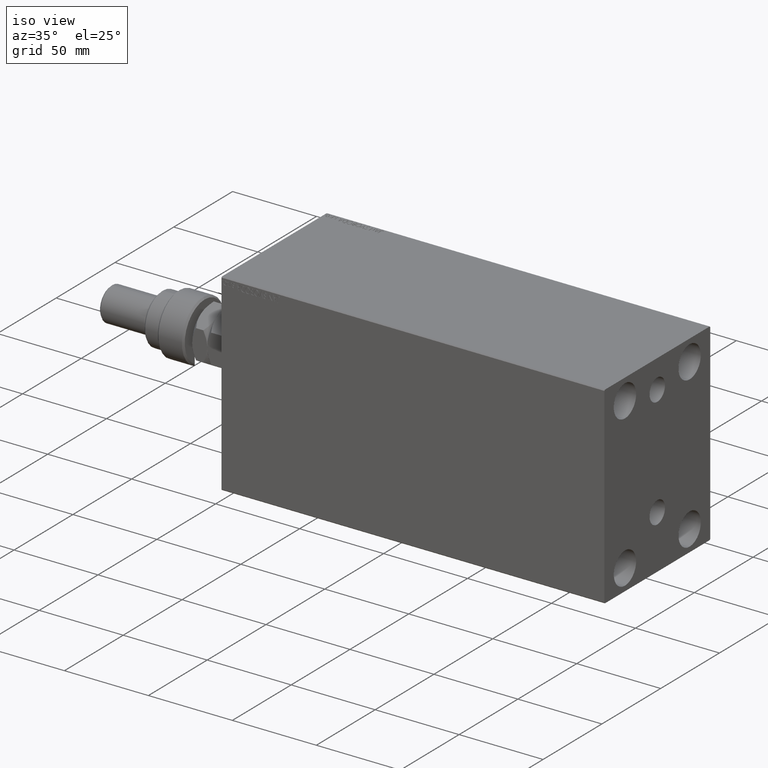
[diagram: clean part render]
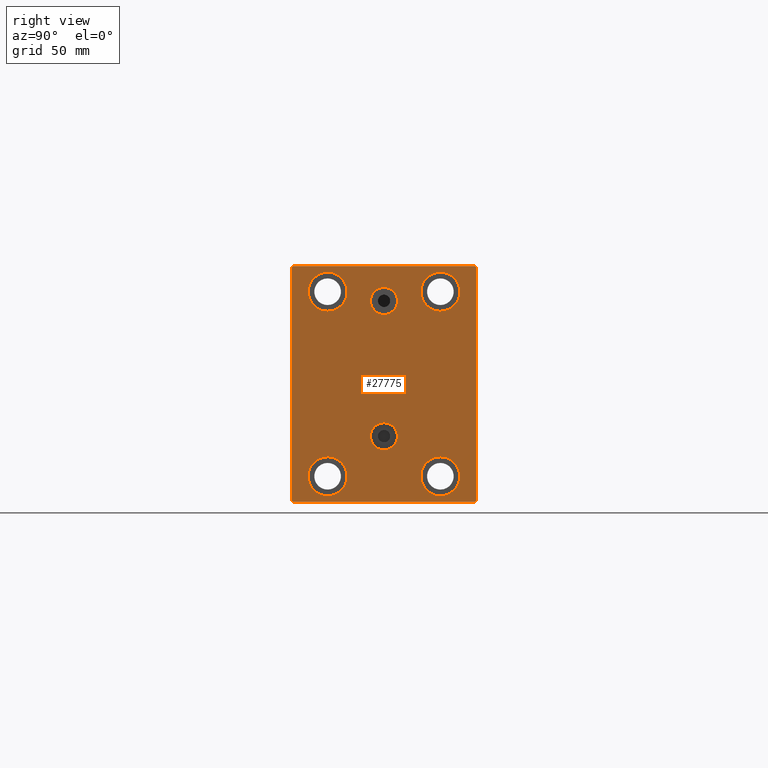
[diagram: tour spotlight — one face highlighted and labeled with its STEP entity id]
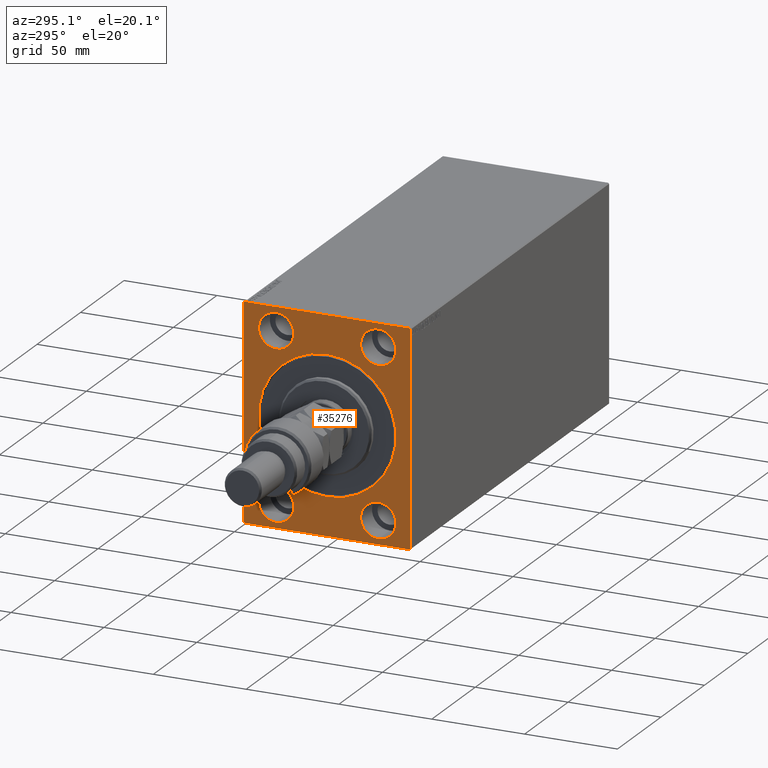
[diagram: tour spotlight — one face highlighted and labeled with its STEP entity id]
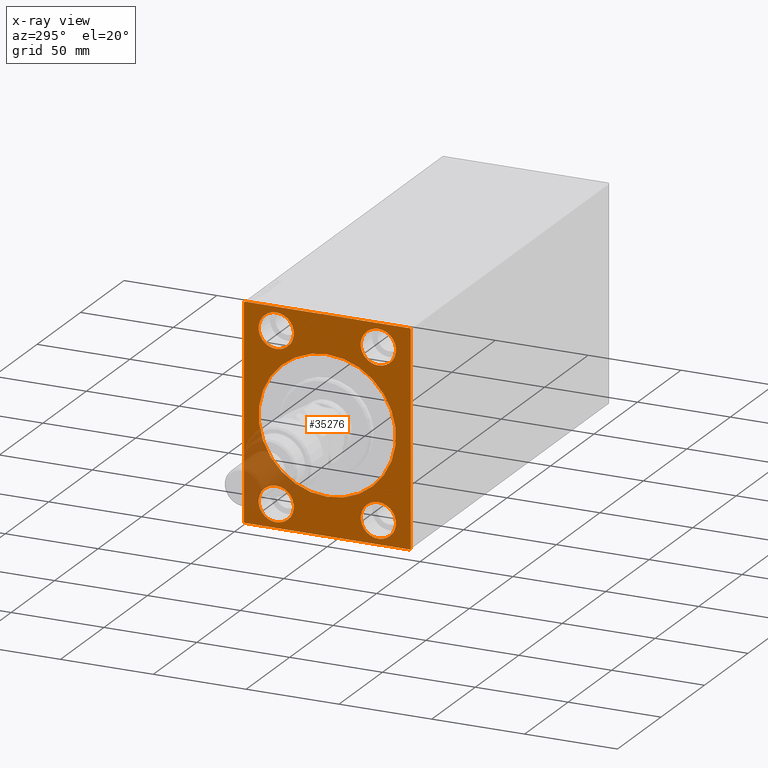
[diagram: x-ray of the same camera — body ghosted, this tour face saturated]
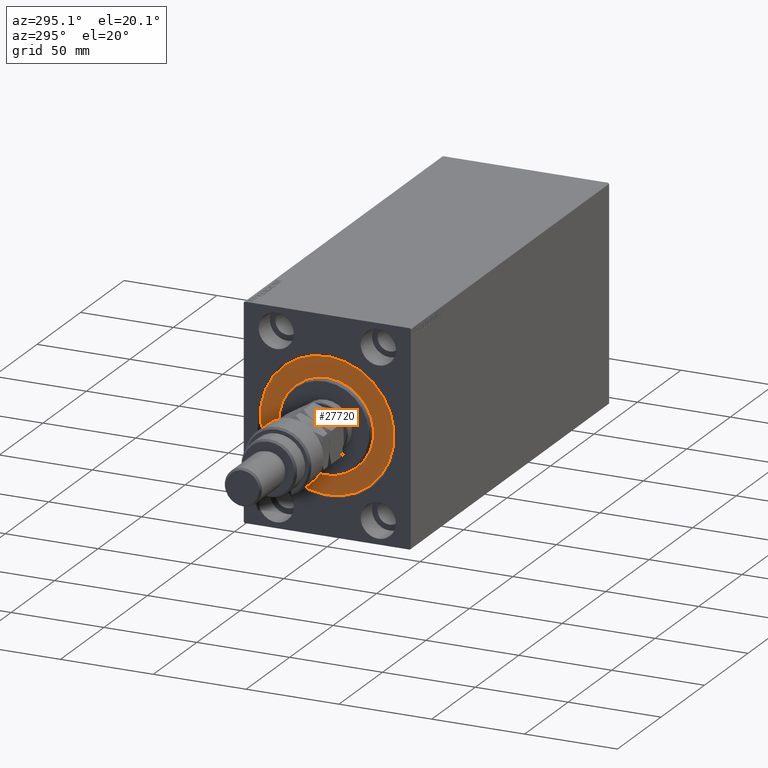
[diagram: tour spotlight — one face highlighted and labeled with its STEP entity id]
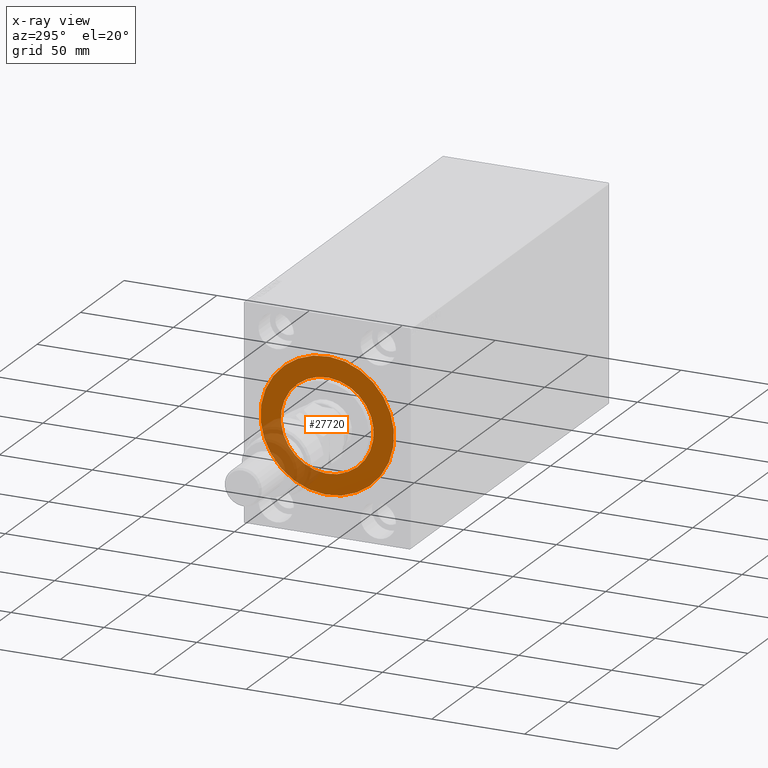
[diagram: x-ray of the same camera — body ghosted, this tour face saturated]
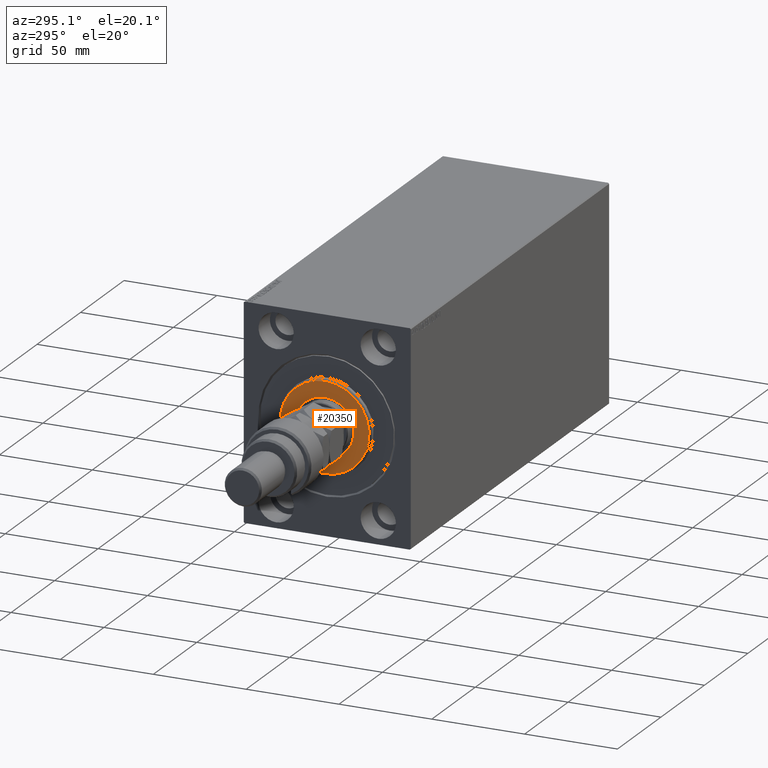
[diagram: tour spotlight — one face highlighted and labeled with its STEP entity id]
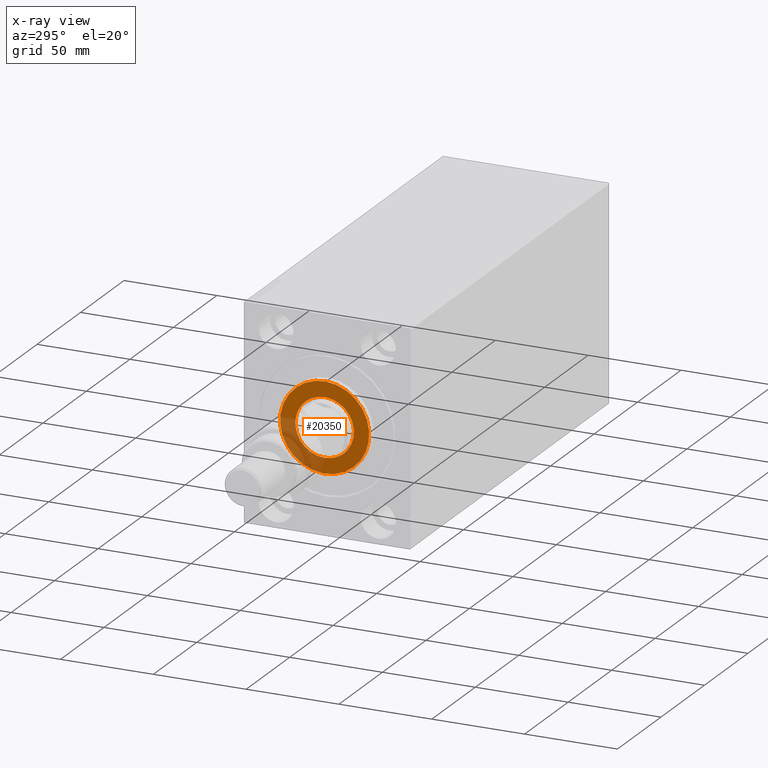
[diagram: x-ray of the same camera — body ghosted, this tour face saturated]
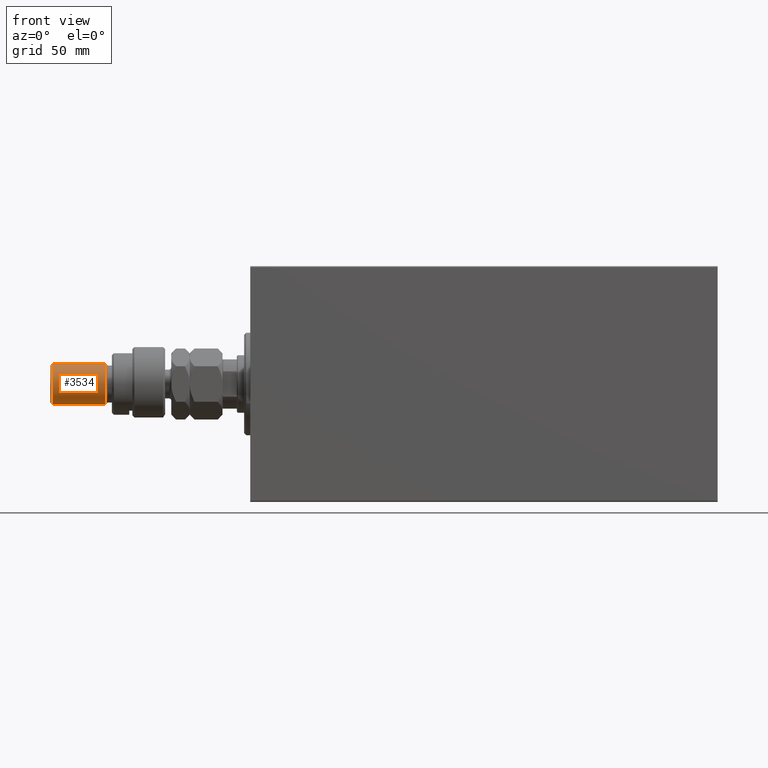
[diagram: tour spotlight — one face highlighted and labeled with its STEP entity id]
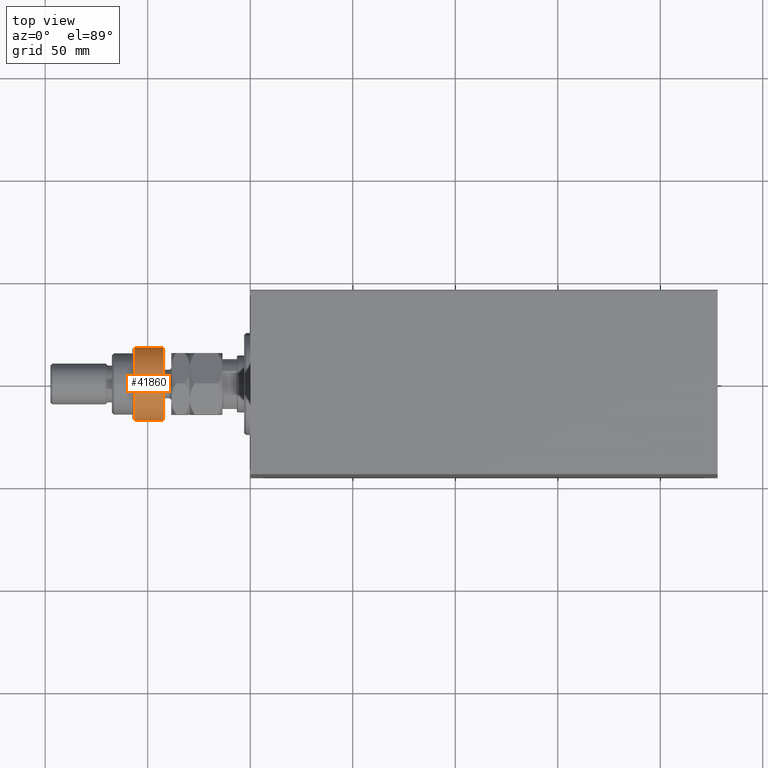
[diagram: tour spotlight — one face highlighted and labeled with its STEP entity id]
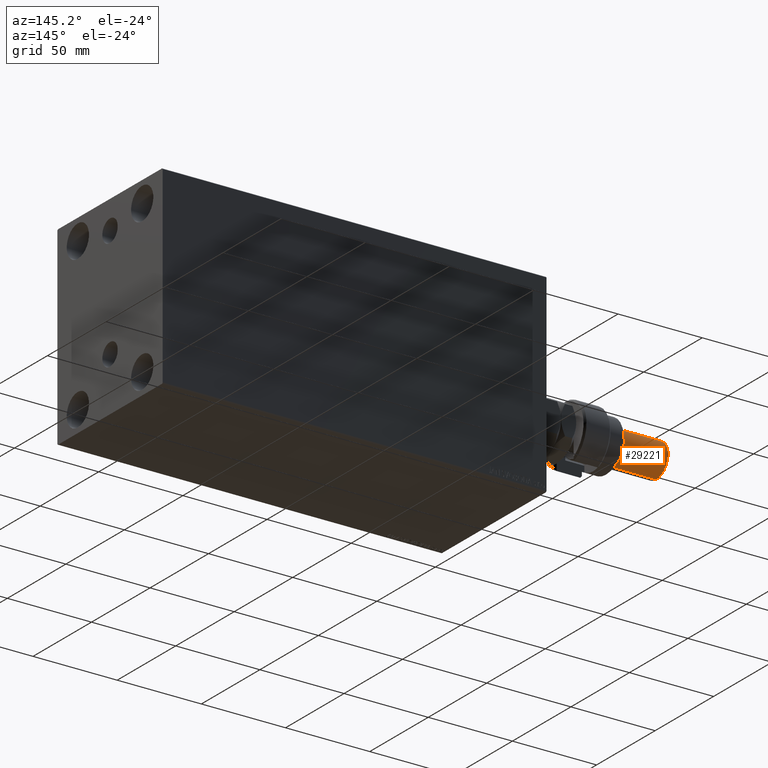
[diagram: tour spotlight — one face highlighted and labeled with its STEP entity id]
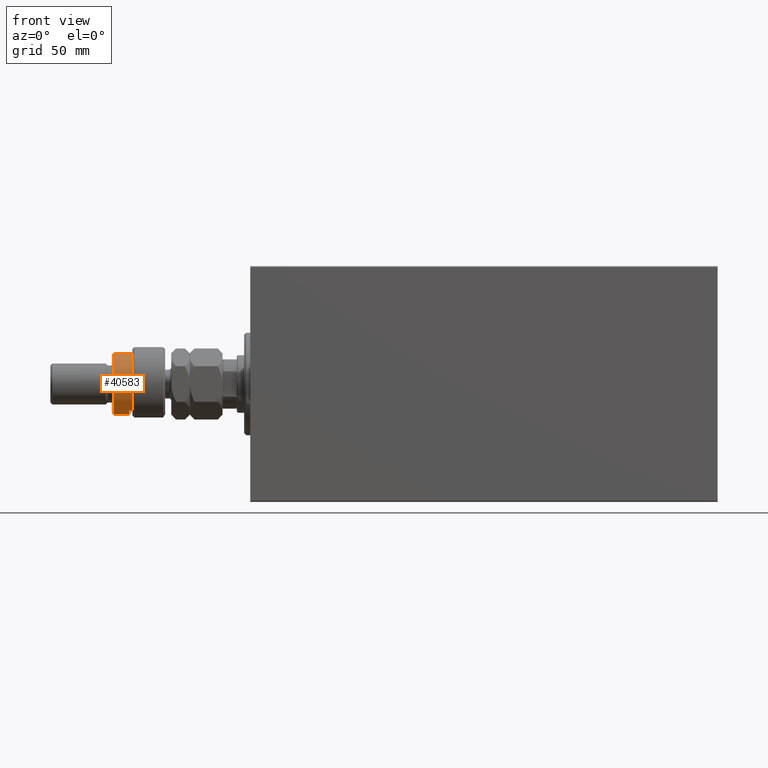
[diagram: tour spotlight — one face highlighted and labeled with its STEP entity id]
A machine part: a face-by-face anatomy tour. The part has 945 B-rep faces; the first image is the clean iso view, then the 8 largest visible faces are spotlighted one at a time (largest first), each with its STEP entity span.

Face 1 — right view, entity #27775. In plain terms, the highlighted planar face has unit normal (1, 0, 0).
Definition (entity closure, byte-faithful):
#322 = EDGE_CURVE ( 'NONE', #9084, #1331, #36266, .T. ) ;
#348 = VERTEX_POINT ( 'NONE', #24573 ) ;
#384 = DIRECTION ( 'NONE',  ( 1.000000000000000000, 0.000000000000000000, 0.000000000000000000 ) ) ;
#438 = EDGE_CURVE ( 'NONE', #28460, #31677, #45548, .T. ) ;
#448 = AXIS2_PLACEMENT_3D ( 'NONE', #3142, #21549, #24635 ) ;
#671 = CARTESIAN_POINT ( 'NONE',  ( 228.0000000000000000, -45.00000000000000000, 56.99999999999999289 ) ) ;
#832 = AXIS2_PLACEMENT_3D ( 'NONE', #37775, #8776, #23166 ) ;
#934 = AXIS2_PLACEMENT_3D ( 'NONE', #31371, #45738, #24996 ) ;
#1091 = ORIENTED_EDGE ( 'NONE', *, *, #14905, .T. ) ;
#1331 = VERTEX_POINT ( 'NONE', #18420 ) ;
#1549 = VERTEX_POINT ( 'NONE', #41040 ) ;
#1796 = LINE ( 'NONE', #31048, #8465 ) ;
#2021 = ORIENTED_EDGE ( 'NONE', *, *, #5324, .T. ) ;
#2175 = DIRECTION ( 'NONE',  ( 0.000000000000000000, 1.000000000000000000, 0.000000000000000000 ) ) ;
#2892 = EDGE_LOOP ( 'NONE', ( #28070, #27869 ) ) ;
#3052 = DIRECTION ( 'NONE',  ( 0.000000000000000000, 0.000000000000000000, -1.000000000000000000 ) ) ;
#3117 = CARTESIAN_POINT ( 'NONE',  ( 228.0000000000000000, 45.00000000000000000, 57.00000000000000711 ) ) ;
#3137 = CIRCLE ( 'NONE', #42334, 9.500000000000001776 ) ;
#3142 = CARTESIAN_POINT ( 'NONE',  ( 228.0000000000000000, 3.122849337825749828E-15, -25.49999999999999645 ) ) ;
#3150 = FACE_BOUND ( 'NONE', #41137, .T. ) ;
#3846 = EDGE_CURVE ( 'NONE', #39774, #18629, #26582, .T. ) ;
#4125 = ORIENTED_EDGE ( 'NONE', *, *, #3846, .F. ) ;
#4287 = DIRECTION ( 'NONE',  ( -1.000000000000000000, -0.000000000000000000, -0.000000000000000000 ) ) ;
#4340 = CARTESIAN_POINT ( 'NONE',  ( 228.0000000000000000, 45.00000000000001421, -56.99999999999997868 ) ) ;
#4694 = DIRECTION ( 'NONE',  ( 0.000000000000000000, -1.206764157201257045E-16, 1.000000000000000000 ) ) ;
#4764 = VECTOR ( 'NONE', #41799, 1000.000000000000000 ) ;
#4897 = CIRCLE ( 'NONE', #13954, 6.580000000000002736 ) ;
#4973 = EDGE_CURVE ( 'NONE', #45929, #44594, #31116, .T. ) ;
#5099 = DIRECTION ( 'NONE',  ( -1.000000000000000000, -0.000000000000000000, -0.000000000000000000 ) ) ;
#5324 = EDGE_CURVE ( 'NONE', #31677, #38510, #41804, .T. ) ;
#5591 = CARTESIAN_POINT ( 'NONE',  ( 228.0000000000000000, -44.50000000000000000, -57.50000000000000711 ) ) ;
#5801 = CARTESIAN_POINT ( 'NONE',  ( 228.0000000000000000, -27.49999999999998934, 45.00000000000000711 ) ) ;
#6480 = CARTESIAN_POINT ( 'NONE',  ( 228.0000000000000000, -27.50000000000000000, -44.99999999999998579 ) ) ;
#6483 = CARTESIAN_POINT ( 'NONE',  ( 228.0000000000000000, -27.50000000000000000, -44.99999999999998579 ) ) ;
#6685 = FACE_BOUND ( 'NONE', #2892, .T. ) ;
#6774 = ORIENTED_EDGE ( 'NONE', *, *, #322, .T. ) ;
#6918 = FACE_BOUND ( 'NONE', #23710, .T. ) ;
#7076 = DIRECTION ( 'NONE',  ( 1.000000000000000000, 0.000000000000000000, 0.000000000000000000 ) ) ;
#7304 = LINE ( 'NONE', #11298, #31611 ) ;
#7305 = ORIENTED_EDGE ( 'NONE', *, *, #42605, .T. ) ;
#8327 = VERTEX_POINT ( 'NONE', #9910 ) ;
#8465 = VECTOR ( 'NONE', #44963, 1000.000000000000000 ) ;
#8776 = DIRECTION ( 'NONE',  ( -1.000000000000000000, -0.000000000000000000, -0.000000000000000000 ) ) ;
#9084 = VERTEX_POINT ( 'NONE', #35284 ) ;
#9585 = CARTESIAN_POINT ( 'NONE',  ( 228.0000000000000000, -4.500599556835684736E-15, 47.08000000000001251 ) ) ;
#9694 = CARTESIAN_POINT ( 'NONE',  ( 228.0000000000000000, -50.99999999999877076, -51.00000000000159162 ) ) ;
#9910 = CARTESIAN_POINT ( 'NONE',  ( 228.0000000000000000, 44.50000000000000000, 57.50000000000000711 ) ) ;
#9999 = VERTEX_POINT ( 'NONE', #29375 ) ;
#10492 = AXIS2_PLACEMENT_3D ( 'NONE', #6483, #46350, #37931 ) ;
#10958 = VERTEX_POINT ( 'NONE', #32765 ) ;
#11271 = CIRCLE ( 'NONE', #10492, 9.500000000000001776 ) ;
#11298 = CARTESIAN_POINT ( 'NONE',  ( 228.0000000000000000, -45.00000000000000000, 57.49999999999999289 ) ) ;
#11711 = VERTEX_POINT ( 'NONE', #45285 ) ;
#12414 = DIRECTION ( 'NONE',  ( -1.000000000000000000, -0.000000000000000000, -0.000000000000000000 ) ) ;
#12484 = VECTOR ( 'NONE', #19153, 1000.000000000000000 ) ;
#12565 = LINE ( 'NONE', #31431, #4764 ) ;
#12655 = ORIENTED_EDGE ( 'NONE', *, *, #39849, .T. ) ;
#12942 = VERTEX_POINT ( 'NONE', #3117 ) ;
#13105 = VECTOR ( 'NONE', #4694, 1000.000000000000000 ) ;
#13397 = EDGE_LOOP ( 'NONE', ( #6774, #24986 ) ) ;
#13954 = AXIS2_PLACEMENT_3D ( 'NONE', #46239, #7076, #35393 ) ;
#14190 = DIRECTION ( 'NONE',  ( 0.000000000000000000, 0.000000000000000000, 1.000000000000000000 ) ) ;
#14802 = CARTESIAN_POINT ( 'NONE',  ( 228.0000000000000000, 27.49999999999998934, -54.49999999999998579 ) ) ;
#14867 = ORIENTED_EDGE ( 'NONE', *, *, #15670, .T. ) ;
#14899 = CIRCLE ( 'NONE', #24723, 9.500000000000001776 ) ;
#14905 = EDGE_CURVE ( 'NONE', #348, #44843, #19999, .T. ) ;
#15670 = EDGE_CURVE ( 'NONE', #10958, #29168, #43670, .T. ) ;
#16009 = DIRECTION ( 'NONE',  ( -1.000000000000000000, -0.000000000000000000, -0.000000000000000000 ) ) ;
#16328 = ORIENTED_EDGE ( 'NONE', *, *, #34783, .T. ) ;
#16604 = FACE_BOUND ( 'NONE', #13397, .T. ) ;
#16947 = ORIENTED_EDGE ( 'NONE', *, *, #36113, .T. ) ;
#17970 = CARTESIAN_POINT ( 'NONE',  ( 228.0000000000000000, 27.49999999999998934, -44.99999999999998579 ) ) ;
#18193 = CIRCLE ( 'NONE', #21200, 9.500000000000001776 ) ;
#18420 = CARTESIAN_POINT ( 'NONE',  ( 228.0000000000000000, -27.49999999999998934, 54.50000000000000711 ) ) ;
#18540 = CIRCLE ( 'NONE', #448, 6.580000000000002736 ) ;
#18629 = VERTEX_POINT ( 'NONE', #30244 ) ;
#18906 = DIRECTION ( 'NONE',  ( 0.000000000000000000, 0.000000000000000000, 1.000000000000000000 ) ) ;
#18945 = CIRCLE ( 'NONE', #43046, 9.500000000000001776 ) ;
#19153 = DIRECTION ( 'NONE',  ( 0.000000000000000000, -0.7071067811865279218, -0.7071067811865671127 ) ) ;
#19173 = ORIENTED_EDGE ( 'NONE', *, *, #28987, .T. ) ;
#19718 = DIRECTION ( 'NONE',  ( 0.000000000000000000, 0.000000000000000000, 1.000000000000000000 ) ) ;
#19999 = CIRCLE ( 'NONE', #46365, 9.500000000000001776 ) ;
#20548 = DIRECTION ( 'NONE',  ( -0.000000000000000000, 0.7071067811865671127, -0.7071067811865279218 ) ) ;
#21042 = AXIS2_PLACEMENT_3D ( 'NONE', #5801, #12414, #27059 ) ;
#21122 = CARTESIAN_POINT ( 'NONE',  ( 228.0000000000000000, -27.50000000000000000, -35.49999999999998579 ) ) ;
#21200 = AXIS2_PLACEMENT_3D ( 'NONE', #30647, #16009, #30413 ) ;
#21549 = DIRECTION ( 'NONE',  ( 1.000000000000000000, 0.000000000000000000, -0.000000000000000000 ) ) ;
#21812 = ORIENTED_EDGE ( 'NONE', *, *, #37764, .T. ) ;
#21832 = ORIENTED_EDGE ( 'NONE', *, *, #35545, .T. ) ;
#22125 = EDGE_CURVE ( 'NONE', #9999, #1549, #14899, .T. ) ;
#22938 = ORIENTED_EDGE ( 'NONE', *, *, #22125, .T. ) ;
#22962 = CARTESIAN_POINT ( 'NONE',  ( 228.0000000000000000, 3.122849337825749828E-15, -32.07999999999999829 ) ) ;
#23137 = EDGE_CURVE ( 'NONE', #1331, #9084, #41412, .T. ) ;
#23166 = DIRECTION ( 'NONE',  ( 0.000000000000000000, 0.000000000000000000, 1.000000000000000000 ) ) ;
#23550 = ORIENTED_EDGE ( 'NONE', *, *, #25708, .T. ) ;
#23555 = CARTESIAN_POINT ( 'NONE',  ( 228.0000000000000000, 45.00000000000001421, -57.50000000000000711 ) ) ;
#23710 = EDGE_LOOP ( 'NONE', ( #16947, #22938 ) ) ;
#23886 = EDGE_LOOP ( 'NONE', ( #12655, #14867, #23550, #32827, #2021, #21812, #7305, #19173 ) ) ;
#24573 = CARTESIAN_POINT ( 'NONE',  ( 228.0000000000000000, 27.49999999999998934, -35.49999999999998579 ) ) ;
#24635 = DIRECTION ( 'NONE',  ( 0.000000000000000000, 0.000000000000000000, 1.000000000000000000 ) ) ;
#24723 = AXIS2_PLACEMENT_3D ( 'NONE', #34342, #5099, #19718 ) ;
#24789 = CARTESIAN_POINT ( 'NONE',  ( 228.0000000000000000, -5.306417150674643778E-15, 33.92000000000000881 ) ) ;
#24869 = DIRECTION ( 'NONE',  ( 1.000000000000000000, 0.000000000000000000, 0.000000000000000000 ) ) ;
#24986 = ORIENTED_EDGE ( 'NONE', *, *, #23137, .T. ) ;
#24996 = DIRECTION ( 'NONE',  ( 0.000000000000000000, 0.000000000000000000, 1.000000000000000000 ) ) ;
#25708 = EDGE_CURVE ( 'NONE', #29168, #28460, #7304, .T. ) ;
#25867 = EDGE_CURVE ( 'NONE', #11711, #37918, #11271, .T. ) ;
#25882 = VECTOR ( 'NONE', #2175, 1000.000000000000000 ) ;
#26100 = VERTEX_POINT ( 'NONE', #4340 ) ;
#26582 = CIRCLE ( 'NONE', #934, 6.580000000000002736 ) ;
#26643 = LINE ( 'NONE', #23555, #13105 ) ;
#26833 = ORIENTED_EDGE ( 'NONE', *, *, #25867, .T. ) ;
#27059 = DIRECTION ( 'NONE',  ( 0.000000000000000000, 0.000000000000000000, 1.000000000000000000 ) ) ;
#27446 = CARTESIAN_POINT ( 'NONE',  ( 228.0000000000000000, -45.00000000000000000, -57.50000000000000711 ) ) ;
#27492 = FACE_BOUND ( 'NONE', #42368, .T. ) ;
#27775 = ADVANCED_FACE ( 'NONE', ( #6685, #46081, #3150, #16604, #6918, #27492, #46324 ), #28421, .T. ) ;
#27869 = ORIENTED_EDGE ( 'NONE', *, *, #4973, .F. ) ;
#28070 = ORIENTED_EDGE ( 'NONE', *, *, #44579, .F. ) ;
#28421 = PLANE ( 'NONE',  #36181 ) ;
#28460 = VERTEX_POINT ( 'NONE', #44521 ) ;
#28987 = EDGE_CURVE ( 'NONE', #12942, #8327, #45049, .T. ) ;
#29168 = VERTEX_POINT ( 'NONE', #671 ) ;
#29375 = CARTESIAN_POINT ( 'NONE',  ( 228.0000000000000000, 27.50000000000001066, 54.50000000000000711 ) ) ;
#30216 = CARTESIAN_POINT ( 'NONE',  ( 228.0000000000000000, 27.50000000000001066, 45.00000000000000711 ) ) ;
#30244 = CARTESIAN_POINT ( 'NONE',  ( 228.0000000000000000, 3.928666931664708475E-15, -18.91999999999999105 ) ) ;
#30413 = DIRECTION ( 'NONE',  ( 0.000000000000000000, 0.000000000000000000, 1.000000000000000000 ) ) ;
#30647 = CARTESIAN_POINT ( 'NONE',  ( 228.0000000000000000, 27.49999999999998934, -44.99999999999998579 ) ) ;
#31048 = CARTESIAN_POINT ( 'NONE',  ( 228.0000000000000000, 51.00000000000125056, -50.99999999999841549 ) ) ;
#31116 = CIRCLE ( 'NONE', #34881, 6.580000000000002736 ) ;
#31251 = CARTESIAN_POINT ( 'NONE',  ( 228.0000000000000000, 0.000000000000000000, 0.000000000000000000 ) ) ;
#31371 = CARTESIAN_POINT ( 'NONE',  ( 228.0000000000000000, 3.122849337825749828E-15, -25.49999999999999645 ) ) ;
#31431 = CARTESIAN_POINT ( 'NONE',  ( 228.0000000000000000, 45.00000000000000000, 57.50000000000000711 ) ) ;
#31611 = VECTOR ( 'NONE', #3052, 1000.000000000000000 ) ;
#31677 = VERTEX_POINT ( 'NONE', #5591 ) ;
#31967 = DIRECTION ( 'NONE',  ( -1.000000000000000000, -0.000000000000000000, -0.000000000000000000 ) ) ;
#32765 = CARTESIAN_POINT ( 'NONE',  ( 228.0000000000000000, -44.50000000000000000, 57.49999999999999289 ) ) ;
#32827 = ORIENTED_EDGE ( 'NONE', *, *, #438, .T. ) ;
#32848 = CARTESIAN_POINT ( 'NONE',  ( 228.0000000000000000, -51.00000000000123634, 50.99999999999841549 ) ) ;
#33967 = VECTOR ( 'NONE', #41052, 1000.000000000000000 ) ;
#34014 = EDGE_LOOP ( 'NONE', ( #4125, #37266 ) ) ;
#34342 = CARTESIAN_POINT ( 'NONE',  ( 228.0000000000000000, 27.50000000000001066, 45.00000000000000711 ) ) ;
#34561 = DIRECTION ( 'NONE',  ( 0.000000000000000000, 0.000000000000000000, 1.000000000000000000 ) ) ;
#34783 = EDGE_CURVE ( 'NONE', #44843, #348, #18193, .T. ) ;
#34881 = AXIS2_PLACEMENT_3D ( 'NONE', #43083, #384, #40244 ) ;
#35284 = CARTESIAN_POINT ( 'NONE',  ( 228.0000000000000000, -27.49999999999998934, 35.50000000000000711 ) ) ;
#35393 = DIRECTION ( 'NONE',  ( 0.000000000000000000, 0.000000000000000000, -1.000000000000000000 ) ) ;
#35545 = EDGE_CURVE ( 'NONE', #37918, #11711, #18945, .T. ) ;
#35709 = DIRECTION ( 'NONE',  ( 0.000000000000000000, 0.000000000000000000, -1.000000000000000000 ) ) ;
#36113 = EDGE_CURVE ( 'NONE', #1549, #9999, #3137, .T. ) ;
#36181 = AXIS2_PLACEMENT_3D ( 'NONE', #31251, #24869, #35709 ) ;
#36266 = CIRCLE ( 'NONE', #832, 9.500000000000001776 ) ;
#37266 = ORIENTED_EDGE ( 'NONE', *, *, #46352, .F. ) ;
#37620 = CARTESIAN_POINT ( 'NONE',  ( 228.0000000000000000, 44.49999999999998579, -57.50000000000000711 ) ) ;
#37764 = EDGE_CURVE ( 'NONE', #38510, #26100, #1796, .T. ) ;
#37775 = CARTESIAN_POINT ( 'NONE',  ( 228.0000000000000000, -27.49999999999998934, 45.00000000000000711 ) ) ;
#37918 = VERTEX_POINT ( 'NONE', #21122 ) ;
#37931 = DIRECTION ( 'NONE',  ( 0.000000000000000000, 0.000000000000000000, 1.000000000000000000 ) ) ;
#38510 = VERTEX_POINT ( 'NONE', #37620 ) ;
#39774 = VERTEX_POINT ( 'NONE', #22962 ) ;
#39849 = EDGE_CURVE ( 'NONE', #8327, #10958, #12565, .T. ) ;
#40244 = DIRECTION ( 'NONE',  ( 0.000000000000000000, 0.000000000000000000, -1.000000000000000000 ) ) ;
#41040 = CARTESIAN_POINT ( 'NONE',  ( 228.0000000000000000, 27.50000000000001066, 35.50000000000000711 ) ) ;
#41052 = DIRECTION ( 'NONE',  ( -0.000000000000000000, -0.7071067811865671127, 0.7071067811865279218 ) ) ;
#41137 = EDGE_LOOP ( 'NONE', ( #16328, #1091 ) ) ;
#41412 = CIRCLE ( 'NONE', #21042, 9.500000000000001776 ) ;
#41799 = DIRECTION ( 'NONE',  ( 0.000000000000000000, -1.000000000000000000, -1.541976423090495387E-16 ) ) ;
#41804 = LINE ( 'NONE', #27446, #25882 ) ;
#42286 = VECTOR ( 'NONE', #20548, 1000.000000000000000 ) ;
#42334 = AXIS2_PLACEMENT_3D ( 'NONE', #30216, #4287, #18906 ) ;
#42368 = EDGE_LOOP ( 'NONE', ( #26833, #21832 ) ) ;
#42605 = EDGE_CURVE ( 'NONE', #26100, #12942, #26643, .T. ) ;
#43046 = AXIS2_PLACEMENT_3D ( 'NONE', #6480, #31967, #34561 ) ;
#43083 = CARTESIAN_POINT ( 'NONE',  ( 228.0000000000000000, -5.306417150674643778E-15, 40.50000000000000711 ) ) ;
#43670 = LINE ( 'NONE', #32848, #12484 ) ;
#44125 = CARTESIAN_POINT ( 'NONE',  ( 228.0000000000000000, 50.99999999999877076, 51.00000000000159162 ) ) ;
#44521 = CARTESIAN_POINT ( 'NONE',  ( 228.0000000000000000, -45.00000000000000000, -57.00000000000003553 ) ) ;
#44579 = EDGE_CURVE ( 'NONE', #44594, #45929, #4897, .T. ) ;
#44594 = VERTEX_POINT ( 'NONE', #24789 ) ;
#44843 = VERTEX_POINT ( 'NONE', #14802 ) ;
#44963 = DIRECTION ( 'NONE',  ( -0.000000000000000000, 0.7071067811865279218, 0.7071067811865672237 ) ) ;
#45049 = LINE ( 'NONE', #44125, #33967 ) ;
#45285 = CARTESIAN_POINT ( 'NONE',  ( 228.0000000000000000, -27.50000000000000000, -54.49999999999998579 ) ) ;
#45548 = LINE ( 'NONE', #9694, #42286 ) ;
#45738 = DIRECTION ( 'NONE',  ( 1.000000000000000000, 0.000000000000000000, -0.000000000000000000 ) ) ;
#45929 = VERTEX_POINT ( 'NONE', #9585 ) ;
#46081 = FACE_BOUND ( 'NONE', #34014, .T. ) ;
#46239 = CARTESIAN_POINT ( 'NONE',  ( 228.0000000000000000, -5.306417150674643778E-15, 40.50000000000000711 ) ) ;
#46324 = FACE_OUTER_BOUND ( 'NONE', #23886, .T. ) ;
#46350 = DIRECTION ( 'NONE',  ( -1.000000000000000000, -0.000000000000000000, -0.000000000000000000 ) ) ;
#46352 = EDGE_CURVE ( 'NONE', #18629, #39774, #18540, .T. ) ;
#46365 = AXIS2_PLACEMENT_3D ( 'NONE', #17970, #46516, #14190 ) ;
#46516 = DIRECTION ( 'NONE',  ( -1.000000000000000000, -0.000000000000000000, -0.000000000000000000 ) ) ;

Face 2 — auxiliary view, entity #35276. An x-ray twin of the same camera follows (body ghosted, this face saturated) — the face is partly hidden behind the body. In plain terms, the highlighted planar face has unit normal (1, 0, 0).
Definition (entity closure, byte-faithful):
#550 = VERTEX_POINT ( 'NONE', #21248 ) ;
#744 = ORIENTED_EDGE ( 'NONE', *, *, #44803, .F. ) ;
#1042 = EDGE_LOOP ( 'NONE', ( #17270, #36314 ) ) ;
#1301 = AXIS2_PLACEMENT_3D ( 'NONE', #42944, #6622, #46255 ) ;
#1490 = AXIS2_PLACEMENT_3D ( 'NONE', #21751, #43216, #26006 ) ;
#2812 = VERTEX_POINT ( 'NONE', #34607 ) ;
#3210 = CARTESIAN_POINT ( 'NONE',  ( 0.000000000000000000, 27.50000000000001066, 45.00000000000000711 ) ) ;
#3252 = CARTESIAN_POINT ( 'NONE',  ( 0.000000000000000000, 45.00000000000000000, 57.50000000000000711 ) ) ;
#3477 = CARTESIAN_POINT ( 'NONE',  ( 0.000000000000000000, 45.00000000000001421, -56.99999999999997868 ) ) ;
#3604 = CARTESIAN_POINT ( 'NONE',  ( 0.000000000000000000, -44.50000000000000000, 57.49999999999999289 ) ) ;
#3781 = EDGE_CURVE ( 'NONE', #10355, #39215, #13423, .T. ) ;
#4033 = CARTESIAN_POINT ( 'NONE',  ( 0.000000000000000000, -27.49999999999998934, 35.50000000000000711 ) ) ;
#4362 = CARTESIAN_POINT ( 'NONE',  ( 0.000000000000000000, 0.000000000000000000, 0.000000000000000000 ) ) ;
#4594 = DIRECTION ( 'NONE',  ( 1.000000000000000000, 0.000000000000000000, 0.000000000000000000 ) ) ;
#4696 = ORIENTED_EDGE ( 'NONE', *, *, #31754, .F. ) ;
#5639 = VECTOR ( 'NONE', #37419, 1000.000000000000000 ) ;
#5662 = DIRECTION ( 'NONE',  ( -1.000000000000000000, 0.000000000000000000, 0.000000000000000000 ) ) ;
#5784 = DIRECTION ( 'NONE',  ( -0.000000000000000000, 0.7071067811865279218, 0.7071067811865671127 ) ) ;
#6007 = VECTOR ( 'NONE', #31341, 1000.000000000000000 ) ;
#6622 = DIRECTION ( 'NONE',  ( -1.000000000000000000, 0.000000000000000000, 0.000000000000000000 ) ) ;
#7105 = CIRCLE ( 'NONE', #10106, 9.500000000000001776 ) ;
#7270 = VERTEX_POINT ( 'NONE', #4033 ) ;
#7586 = EDGE_CURVE ( 'NONE', #550, #8193, #7105, .T. ) ;
#7694 = AXIS2_PLACEMENT_3D ( 'NONE', #44539, #15301, #44080 ) ;
#7894 = EDGE_CURVE ( 'NONE', #44959, #44477, #31962, .T. ) ;
#8193 = VERTEX_POINT ( 'NONE', #46662 ) ;
#8736 = CARTESIAN_POINT ( 'NONE',  ( 0.000000000000000000, -27.50000000000000000, -44.99999999999998579 ) ) ;
#9132 = CIRCLE ( 'NONE', #39237, 9.500000000000001776 ) ;
#9510 = CARTESIAN_POINT ( 'NONE',  ( 0.000000000000000000, -27.49999999999998934, 54.50000000000000711 ) ) ;
#9774 = ORIENTED_EDGE ( 'NONE', *, *, #42786, .T. ) ;
#10106 = AXIS2_PLACEMENT_3D ( 'NONE', #30784, #37402, #40932 ) ;
#10355 = VERTEX_POINT ( 'NONE', #16537 ) ;
#10513 = FACE_BOUND ( 'NONE', #19910, .T. ) ;
#10569 = DIRECTION ( 'NONE',  ( 0.000000000000000000, -1.000000000000000000, -1.541976423090495387E-16 ) ) ;
#10603 = ORIENTED_EDGE ( 'NONE', *, *, #26872, .F. ) ;
#10875 = ORIENTED_EDGE ( 'NONE', *, *, #19996, .F. ) ;
#10879 = LINE ( 'NONE', #39651, #44193 ) ;
#10975 = VERTEX_POINT ( 'NONE', #25686 ) ;
#10987 = FACE_BOUND ( 'NONE', #1042, .T. ) ;
#11046 = EDGE_LOOP ( 'NONE', ( #10603, #18347, #744, #13983, #34630, #9774, #12780, #17509 ) ) ;
#11127 = CARTESIAN_POINT ( 'NONE',  ( 0.000000000000000000, 27.50000000000001066, 35.50000000000000711 ) ) ;
#11874 = CARTESIAN_POINT ( 'NONE',  ( 0.000000000000000000, 45.00000000000001421, -56.99999999999997868 ) ) ;
#12728 = DIRECTION ( 'NONE',  ( 0.000000000000000000, 0.000000000000000000, 1.000000000000000000 ) ) ;
#12780 = ORIENTED_EDGE ( 'NONE', *, *, #3781, .F. ) ;
#13423 = LINE ( 'NONE', #17424, #46156 ) ;
#13512 = VECTOR ( 'NONE', #41285, 1000.000000000000000 ) ;
#13665 = EDGE_LOOP ( 'NONE', ( #10875, #30113 ) ) ;
#13676 = AXIS2_PLACEMENT_3D ( 'NONE', #3210, #46140, #28242 ) ;
#13983 = ORIENTED_EDGE ( 'NONE', *, *, #25532, .T. ) ;
#14054 = FACE_BOUND ( 'NONE', #32797, .T. ) ;
#14279 = FACE_OUTER_BOUND ( 'NONE', #11046, .T. ) ;
#14786 = VERTEX_POINT ( 'NONE', #11874 ) ;
#15293 = AXIS2_PLACEMENT_3D ( 'NONE', #8736, #5662, #12728 ) ;
#15301 = DIRECTION ( 'NONE',  ( 1.000000000000000000, 0.000000000000000000, 0.000000000000000000 ) ) ;
#16537 = CARTESIAN_POINT ( 'NONE',  ( 0.000000000000000000, -44.50000000000000000, -57.50000000000000711 ) ) ;
#16621 = LINE ( 'NONE', #27271, #27251 ) ;
#16827 = VERTEX_POINT ( 'NONE', #36090 ) ;
#16854 = AXIS2_PLACEMENT_3D ( 'NONE', #36648, #43712, #25359 ) ;
#17169 = LINE ( 'NONE', #3252, #19221 ) ;
#17270 = ORIENTED_EDGE ( 'NONE', *, *, #7586, .F. ) ;
#17424 = CARTESIAN_POINT ( 'NONE',  ( 0.000000000000000000, -45.00000000000000000, -57.50000000000000711 ) ) ;
#17509 = ORIENTED_EDGE ( 'NONE', *, *, #33518, .T. ) ;
#18066 = DIRECTION ( 'NONE',  ( 0.000000000000000000, 0.000000000000000000, 1.000000000000000000 ) ) ;
#18347 = ORIENTED_EDGE ( 'NONE', *, *, #29632, .T. ) ;
#18864 = EDGE_CURVE ( 'NONE', #14786, #16827, #10879, .T. ) ;
#18901 = LINE ( 'NONE', #33300, #13512 ) ;
#19155 = LINE ( 'NONE', #44599, #46034 ) ;
#19221 = VECTOR ( 'NONE', #10569, 1000.000000000000000 ) ;
#19367 = CARTESIAN_POINT ( 'NONE',  ( 0.000000000000000000, 44.49999999999998579, -57.50000000000000711 ) ) ;
#19910 = EDGE_LOOP ( 'NONE', ( #4696, #23277 ) ) ;
#19996 = EDGE_CURVE ( 'NONE', #10975, #27899, #21648, .T. ) ;
#20747 = DIRECTION ( 'NONE',  ( 0.000000000000000000, 1.000000000000000000, 0.000000000000000000 ) ) ;
#21232 = AXIS2_PLACEMENT_3D ( 'NONE', #21612, #35998, #18066 ) ;
#21248 = CARTESIAN_POINT ( 'NONE',  ( 0.000000000000000000, 27.49999999999998934, -35.49999999999998579 ) ) ;
#21405 = LINE ( 'NONE', #3477, #5639 ) ;
#21612 = CARTESIAN_POINT ( 'NONE',  ( 0.000000000000000000, 27.50000000000001066, 45.00000000000000711 ) ) ;
#21648 = CIRCLE ( 'NONE', #1301, 9.500000000000001776 ) ;
#21751 = CARTESIAN_POINT ( 'NONE',  ( 0.000000000000000000, -27.49999999999998934, 45.00000000000000711 ) ) ;
#21970 = AXIS2_PLACEMENT_3D ( 'NONE', #4362, #4594, #37140 ) ;
#23277 = ORIENTED_EDGE ( 'NONE', *, *, #31809, .F. ) ;
#23483 = DIRECTION ( 'NONE',  ( 0.000000000000000000, 0.000000000000000000, 1.000000000000000000 ) ) ;
#23582 = VERTEX_POINT ( 'NONE', #3604 ) ;
#24033 = ORIENTED_EDGE ( 'NONE', *, *, #29690, .F. ) ;
#24662 = VERTEX_POINT ( 'NONE', #42733 ) ;
#24794 = EDGE_CURVE ( 'NONE', #8193, #550, #34566, .T. ) ;
#25359 = DIRECTION ( 'NONE',  ( 0.000000000000000000, 0.000000000000000000, -1.000000000000000000 ) ) ;
#25532 = EDGE_CURVE ( 'NONE', #24662, #16827, #18901, .T. ) ;
#25665 = VERTEX_POINT ( 'NONE', #38440 ) ;
#25686 = CARTESIAN_POINT ( 'NONE',  ( 0.000000000000000000, -27.50000000000000000, -35.49999999999998579 ) ) ;
#26006 = DIRECTION ( 'NONE',  ( 0.000000000000000000, 0.000000000000000000, 1.000000000000000000 ) ) ;
#26349 = EDGE_CURVE ( 'NONE', #44157, #7270, #46687, .T. ) ;
#26872 = EDGE_CURVE ( 'NONE', #2812, #25665, #30863, .T. ) ;
#27251 = VECTOR ( 'NONE', #5784, 1000.000000000000000 ) ;
#27271 = CARTESIAN_POINT ( 'NONE',  ( 0.000000000000000000, -45.00000000000000000, 56.99999999999999289 ) ) ;
#27586 = CARTESIAN_POINT ( 'NONE',  ( 0.000000000000000000, -45.00000000000000000, 57.49999999999999289 ) ) ;
#27899 = VERTEX_POINT ( 'NONE', #41561 ) ;
#28242 = DIRECTION ( 'NONE',  ( 0.000000000000000000, 0.000000000000000000, 1.000000000000000000 ) ) ;
#28461 = FACE_BOUND ( 'NONE', #31355, .T. ) ;
#29519 = CIRCLE ( 'NONE', #21232, 9.500000000000001776 ) ;
#29632 = EDGE_CURVE ( 'NONE', #2812, #23582, #16621, .T. ) ;
#29690 = EDGE_CURVE ( 'NONE', #7270, #44157, #9132, .T. ) ;
#30113 = ORIENTED_EDGE ( 'NONE', *, *, #39202, .F. ) ;
#30784 = CARTESIAN_POINT ( 'NONE',  ( 0.000000000000000000, 27.49999999999998934, -44.99999999999998579 ) ) ;
#30863 = LINE ( 'NONE', #27586, #6007 ) ;
#31026 = DIRECTION ( 'NONE',  ( -1.000000000000000000, 0.000000000000000000, 0.000000000000000000 ) ) ;
#31341 = DIRECTION ( 'NONE',  ( 0.000000000000000000, 0.000000000000000000, -1.000000000000000000 ) ) ;
#31355 = EDGE_LOOP ( 'NONE', ( #46256, #24033 ) ) ;
#31754 = EDGE_CURVE ( 'NONE', #39751, #40074, #31782, .T. ) ;
#31782 = CIRCLE ( 'NONE', #13676, 9.500000000000001776 ) ;
#31809 = EDGE_CURVE ( 'NONE', #40074, #39751, #29519, .T. ) ;
#31962 = CIRCLE ( 'NONE', #16854, 36.99999999999997868 ) ;
#32797 = EDGE_LOOP ( 'NONE', ( #42417, #39647 ) ) ;
#33148 = PLANE ( 'NONE',  #21970 ) ;
#33300 = CARTESIAN_POINT ( 'NONE',  ( 0.000000000000000000, 44.50000000000000000, 57.50000000000000711 ) ) ;
#33518 = EDGE_CURVE ( 'NONE', #10355, #25665, #19155, .T. ) ;
#34228 = DIRECTION ( 'NONE',  ( -0.000000000000000000, -0.7071067811865671127, 0.7071067811865279218 ) ) ;
#34566 = CIRCLE ( 'NONE', #39851, 9.500000000000001776 ) ;
#34607 = CARTESIAN_POINT ( 'NONE',  ( 0.000000000000000000, -45.00000000000000000, 56.99999999999999289 ) ) ;
#34630 = ORIENTED_EDGE ( 'NONE', *, *, #18864, .F. ) ;
#35276 = ADVANCED_FACE ( 'NONE', ( #14054, #10987, #28461, #10513, #46598, #14279 ), #33148, .F. ) ;
#35640 = CIRCLE ( 'NONE', #15293, 9.500000000000001776 ) ;
#35998 = DIRECTION ( 'NONE',  ( -1.000000000000000000, 0.000000000000000000, 0.000000000000000000 ) ) ;
#36090 = CARTESIAN_POINT ( 'NONE',  ( 0.000000000000000000, 45.00000000000000000, 57.00000000000000711 ) ) ;
#36314 = ORIENTED_EDGE ( 'NONE', *, *, #24794, .F. ) ;
#36390 = EDGE_CURVE ( 'NONE', #44477, #44959, #40821, .T. ) ;
#36648 = CARTESIAN_POINT ( 'NONE',  ( 0.000000000000000000, 0.000000000000000000, 0.000000000000000000 ) ) ;
#37140 = DIRECTION ( 'NONE',  ( 0.000000000000000000, 0.000000000000000000, -1.000000000000000000 ) ) ;
#37402 = DIRECTION ( 'NONE',  ( -1.000000000000000000, 0.000000000000000000, 0.000000000000000000 ) ) ;
#37419 = DIRECTION ( 'NONE',  ( 0.000000000000000000, -0.7071067811865279218, -0.7071067811865672237 ) ) ;
#37433 = CARTESIAN_POINT ( 'NONE',  ( 0.000000000000000000, 4.531193156845203637E-15, -36.99999999999997868 ) ) ;
#37861 = CARTESIAN_POINT ( 'NONE',  ( 0.000000000000000000, -27.49999999999998934, 45.00000000000000711 ) ) ;
#38440 = CARTESIAN_POINT ( 'NONE',  ( 0.000000000000000000, -45.00000000000000000, -57.00000000000003553 ) ) ;
#39202 = EDGE_CURVE ( 'NONE', #27899, #10975, #35640, .T. ) ;
#39215 = VERTEX_POINT ( 'NONE', #19367 ) ;
#39237 = AXIS2_PLACEMENT_3D ( 'NONE', #37861, #31026, #23483 ) ;
#39647 = ORIENTED_EDGE ( 'NONE', *, *, #7894, .T. ) ;
#39651 = CARTESIAN_POINT ( 'NONE',  ( 0.000000000000000000, 45.00000000000001421, -57.50000000000000711 ) ) ;
#39751 = VERTEX_POINT ( 'NONE', #40876 ) ;
#39851 = AXIS2_PLACEMENT_3D ( 'NONE', #41226, #44994, #41685 ) ;
#40074 = VERTEX_POINT ( 'NONE', #11127 ) ;
#40821 = CIRCLE ( 'NONE', #7694, 36.99999999999997868 ) ;
#40876 = CARTESIAN_POINT ( 'NONE',  ( 0.000000000000000000, 27.50000000000001066, 54.50000000000000711 ) ) ;
#40932 = DIRECTION ( 'NONE',  ( 0.000000000000000000, 0.000000000000000000, 1.000000000000000000 ) ) ;
#41226 = CARTESIAN_POINT ( 'NONE',  ( 0.000000000000000000, 27.49999999999998934, -44.99999999999998579 ) ) ;
#41285 = DIRECTION ( 'NONE',  ( -0.000000000000000000, 0.7071067811865671127, -0.7071067811865279218 ) ) ;
#41561 = CARTESIAN_POINT ( 'NONE',  ( 0.000000000000000000, -27.50000000000000000, -54.49999999999998579 ) ) ;
#41685 = DIRECTION ( 'NONE',  ( 0.000000000000000000, 0.000000000000000000, 1.000000000000000000 ) ) ;
#42000 = CARTESIAN_POINT ( 'NONE',  ( 0.000000000000000000, 0.000000000000000000, 36.99999999999997868 ) ) ;
#42417 = ORIENTED_EDGE ( 'NONE', *, *, #36390, .T. ) ;
#42733 = CARTESIAN_POINT ( 'NONE',  ( 0.000000000000000000, 44.50000000000000000, 57.50000000000000711 ) ) ;
#42786 = EDGE_CURVE ( 'NONE', #14786, #39215, #21405, .T. ) ;
#42944 = CARTESIAN_POINT ( 'NONE',  ( 0.000000000000000000, -27.50000000000000000, -44.99999999999998579 ) ) ;
#43216 = DIRECTION ( 'NONE',  ( -1.000000000000000000, 0.000000000000000000, 0.000000000000000000 ) ) ;
#43712 = DIRECTION ( 'NONE',  ( 1.000000000000000000, 0.000000000000000000, 0.000000000000000000 ) ) ;
#43874 = DIRECTION ( 'NONE',  ( 0.000000000000000000, -1.206764157201257045E-16, 1.000000000000000000 ) ) ;
#44080 = DIRECTION ( 'NONE',  ( 0.000000000000000000, 0.000000000000000000, -1.000000000000000000 ) ) ;
#44157 = VERTEX_POINT ( 'NONE', #9510 ) ;
#44193 = VECTOR ( 'NONE', #43874, 1000.000000000000000 ) ;
#44477 = VERTEX_POINT ( 'NONE', #42000 ) ;
#44539 = CARTESIAN_POINT ( 'NONE',  ( 0.000000000000000000, 0.000000000000000000, 0.000000000000000000 ) ) ;
#44599 = CARTESIAN_POINT ( 'NONE',  ( 0.000000000000000000, -44.50000000000000000, -57.50000000000000711 ) ) ;
#44803 = EDGE_CURVE ( 'NONE', #24662, #23582, #17169, .T. ) ;
#44959 = VERTEX_POINT ( 'NONE', #37433 ) ;
#44994 = DIRECTION ( 'NONE',  ( -1.000000000000000000, 0.000000000000000000, 0.000000000000000000 ) ) ;
#46034 = VECTOR ( 'NONE', #34228, 1000.000000000000000 ) ;
#46140 = DIRECTION ( 'NONE',  ( -1.000000000000000000, 0.000000000000000000, 0.000000000000000000 ) ) ;
#46156 = VECTOR ( 'NONE', #20747, 1000.000000000000000 ) ;
#46255 = DIRECTION ( 'NONE',  ( 0.000000000000000000, 0.000000000000000000, 1.000000000000000000 ) ) ;
#46256 = ORIENTED_EDGE ( 'NONE', *, *, #26349, .F. ) ;
#46598 = FACE_BOUND ( 'NONE', #13665, .T. ) ;
#46662 = CARTESIAN_POINT ( 'NONE',  ( 0.000000000000000000, 27.49999999999998934, -54.49999999999998579 ) ) ;
#46687 = CIRCLE ( 'NONE', #1490, 9.500000000000001776 ) ;

Face 3 — auxiliary view, entity #27720. An x-ray twin of the same camera follows (body ghosted, this face saturated) — the face is partly hidden behind the body. In plain terms, the highlighted planar face has unit normal (1, 0, -0).
Definition (entity closure, byte-faithful):
#5334 = CARTESIAN_POINT ( 'NONE',  ( 0.000000000000000000, 0.000000000000000000, 0.000000000000000000 ) ) ;
#6159 = ORIENTED_EDGE ( 'NONE', *, *, #23127, .F. ) ;
#7128 = AXIS2_PLACEMENT_3D ( 'NONE', #29833, #40665, #19450 ) ;
#10247 = PLANE ( 'NONE',  #38434 ) ;
#10793 = EDGE_LOOP ( 'NONE', ( #6159, #32052 ) ) ;
#11790 = EDGE_LOOP ( 'NONE', ( #32385, #12805 ) ) ;
#12805 = ORIENTED_EDGE ( 'NONE', *, *, #17417, .F. ) ;
#13255 = CIRCLE ( 'NONE', #14035, 25.00000000000000000 ) ;
#13291 = DIRECTION ( 'NONE',  ( 0.000000000000000000, 0.000000000000000000, -1.000000000000000000 ) ) ;
#13462 = EDGE_CURVE ( 'NONE', #43353, #19077, #29737, .T. ) ;
#13898 = CARTESIAN_POINT ( 'NONE',  ( 0.000000000000000000, 0.000000000000000000, 0.000000000000000000 ) ) ;
#14008 = FACE_BOUND ( 'NONE', #11790, .T. ) ;
#14035 = AXIS2_PLACEMENT_3D ( 'NONE', #44672, #23448, #13291 ) ;
#16060 = CIRCLE ( 'NONE', #42439, 36.00000000000000000 ) ;
#17147 = CARTESIAN_POINT ( 'NONE',  ( 0.000000000000000000, 4.408728476930470856E-15, 36.00000000000000000 ) ) ;
#17195 = DIRECTION ( 'NONE',  ( 0.000000000000000000, 0.000000000000000000, 1.000000000000000000 ) ) ;
#17417 = EDGE_CURVE ( 'NONE', #19077, #43353, #13255, .T. ) ;
#19077 = VERTEX_POINT ( 'NONE', #34875 ) ;
#19450 = DIRECTION ( 'NONE',  ( 0.000000000000000000, 0.000000000000000000, -1.000000000000000000 ) ) ;
#20309 = CIRCLE ( 'NONE', #23340, 36.00000000000000000 ) ;
#20388 = DIRECTION ( 'NONE',  ( 0.000000000000000000, 0.000000000000000000, 1.000000000000000000 ) ) ;
#23127 = EDGE_CURVE ( 'NONE', #27409, #41593, #20309, .T. ) ;
#23340 = AXIS2_PLACEMENT_3D ( 'NONE', #5334, #37428, #44722 ) ;
#23448 = DIRECTION ( 'NONE',  ( 1.000000000000000000, -0.000000000000000000, 0.000000000000000000 ) ) ;
#27409 = VERTEX_POINT ( 'NONE', #28997 ) ;
#27720 = ADVANCED_FACE ( 'NONE', ( #14008, #28186 ), #10247, .F. ) ;
#28186 = FACE_OUTER_BOUND ( 'NONE', #10793, .T. ) ;
#28316 = DIRECTION ( 'NONE',  ( -1.000000000000000000, 0.000000000000000000, 0.000000000000000000 ) ) ;
#28997 = CARTESIAN_POINT ( 'NONE',  ( 0.000000000000000000, 0.000000000000000000, -36.00000000000000000 ) ) ;
#29737 = CIRCLE ( 'NONE', #7128, 25.00000000000000000 ) ;
#29833 = CARTESIAN_POINT ( 'NONE',  ( 0.000000000000000000, 0.000000000000000000, 0.000000000000000000 ) ) ;
#32052 = ORIENTED_EDGE ( 'NONE', *, *, #39366, .F. ) ;
#32385 = ORIENTED_EDGE ( 'NONE', *, *, #13462, .F. ) ;
#34875 = CARTESIAN_POINT ( 'NONE',  ( 0.000000000000000000, 3.061616997868383043E-15, -25.00000000000000000 ) ) ;
#35223 = CARTESIAN_POINT ( 'NONE',  ( 0.000000000000000000, 0.000000000000000000, 25.00000000000000000 ) ) ;
#37428 = DIRECTION ( 'NONE',  ( -1.000000000000000000, 0.000000000000000000, 0.000000000000000000 ) ) ;
#38434 = AXIS2_PLACEMENT_3D ( 'NONE', #42780, #42551, #20388 ) ;
#39366 = EDGE_CURVE ( 'NONE', #41593, #27409, #16060, .T. ) ;
#40665 = DIRECTION ( 'NONE',  ( 1.000000000000000000, -0.000000000000000000, 0.000000000000000000 ) ) ;
#41593 = VERTEX_POINT ( 'NONE', #17147 ) ;
#42439 = AXIS2_PLACEMENT_3D ( 'NONE', #13898, #28316, #17195 ) ;
#42551 = DIRECTION ( 'NONE',  ( -1.000000000000000000, 0.000000000000000000, 0.000000000000000000 ) ) ;
#42780 = CARTESIAN_POINT ( 'NONE',  ( 0.000000000000000000, 0.000000000000000000, 0.000000000000000000 ) ) ;
#43353 = VERTEX_POINT ( 'NONE', #35223 ) ;
#44672 = CARTESIAN_POINT ( 'NONE',  ( 0.000000000000000000, 0.000000000000000000, 0.000000000000000000 ) ) ;
#44722 = DIRECTION ( 'NONE',  ( 0.000000000000000000, 0.000000000000000000, 1.000000000000000000 ) ) ;

Face 4 — auxiliary view, entity #20350. An x-ray twin of the same camera follows (body ghosted, this face saturated) — the face is partly hidden behind the body. In plain terms, the highlighted planar face has unit normal (-1, 0, 0).
Definition (entity closure, byte-faithful):
#53 = ORIENTED_EDGE ( 'NONE', *, *, #17243, .T. ) ;
#161 = EDGE_LOOP ( 'NONE', ( #506, #53 ) ) ;
#506 = ORIENTED_EDGE ( 'NONE', *, *, #34591, .T. ) ;
#596 = PLANE ( 'NONE',  #35217 ) ;
#2353 = DIRECTION ( 'NONE',  ( 0.000000000000000000, 0.000000000000000000, -1.000000000000000000 ) ) ;
#2589 = CARTESIAN_POINT ( 'NONE',  ( 3.000000000000000000, 0.000000000000000000, 0.000000000000000000 ) ) ;
#2839 = DIRECTION ( 'NONE',  ( 0.000000000000000000, 0.000000000000000000, -1.000000000000000000 ) ) ;
#3505 = EDGE_LOOP ( 'NONE', ( #43728, #34877 ) ) ;
#4263 = CARTESIAN_POINT ( 'NONE',  ( 3.000000000000000000, 1.928818708657080950E-15, -15.75000000000000000 ) ) ;
#4510 = DIRECTION ( 'NONE',  ( 1.000000000000000000, -0.000000000000000000, 0.000000000000000000 ) ) ;
#4603 = DIRECTION ( 'NONE',  ( 0.000000000000000000, 0.000000000000000000, -1.000000000000000000 ) ) ;
#5389 = VERTEX_POINT ( 'NONE', #31201 ) ;
#5566 = AXIS2_PLACEMENT_3D ( 'NONE', #43204, #4510, #18897 ) ;
#5859 = VERTEX_POINT ( 'NONE', #46137 ) ;
#6356 = CIRCLE ( 'NONE', #25202, 24.00000000000000711 ) ;
#7264 = CARTESIAN_POINT ( 'NONE',  ( 3.000000000000000000, 0.000000000000000000, 24.00000000000000711 ) ) ;
#11676 = EDGE_CURVE ( 'NONE', #17058, #5859, #6356, .T. ) ;
#12332 = CIRCLE ( 'NONE', #5566, 24.00000000000000711 ) ;
#12874 = DIRECTION ( 'NONE',  ( 0.000000000000000000, 0.000000000000000000, -1.000000000000000000 ) ) ;
#13114 = CARTESIAN_POINT ( 'NONE',  ( 3.000000000000000000, 0.000000000000000000, 0.000000000000000000 ) ) ;
#13451 = CARTESIAN_POINT ( 'NONE',  ( 3.000000000000000000, 0.000000000000000000, 0.000000000000000000 ) ) ;
#15446 = FACE_BOUND ( 'NONE', #161, .T. ) ;
#17058 = VERTEX_POINT ( 'NONE', #7264 ) ;
#17243 = EDGE_CURVE ( 'NONE', #18875, #5389, #19304, .T. ) ;
#18555 = AXIS2_PLACEMENT_3D ( 'NONE', #13114, #27534, #12874 ) ;
#18875 = VERTEX_POINT ( 'NONE', #4263 ) ;
#18897 = DIRECTION ( 'NONE',  ( 0.000000000000000000, 0.000000000000000000, -1.000000000000000000 ) ) ;
#19304 = CIRCLE ( 'NONE', #18555, 15.75000000000000000 ) ;
#20350 = ADVANCED_FACE ( 'NONE', ( #22765, #15446 ), #596, .T. ) ;
#22765 = FACE_OUTER_BOUND ( 'NONE', #3505, .T. ) ;
#25202 = AXIS2_PLACEMENT_3D ( 'NONE', #2589, #27394, #2353 ) ;
#27394 = DIRECTION ( 'NONE',  ( 1.000000000000000000, -0.000000000000000000, 0.000000000000000000 ) ) ;
#27534 = DIRECTION ( 'NONE',  ( -1.000000000000000000, 0.000000000000000000, -0.000000000000000000 ) ) ;
#28009 = CIRCLE ( 'NONE', #46067, 15.75000000000000000 ) ;
#30305 = CARTESIAN_POINT ( 'NONE',  ( 3.000000000000000000, 0.000000000000000000, 0.000000000000000000 ) ) ;
#31201 = CARTESIAN_POINT ( 'NONE',  ( 3.000000000000000000, 0.000000000000000000, 15.75000000000000000 ) ) ;
#34591 = EDGE_CURVE ( 'NONE', #5389, #18875, #28009, .T. ) ;
#34877 = ORIENTED_EDGE ( 'NONE', *, *, #41120, .T. ) ;
#35217 = AXIS2_PLACEMENT_3D ( 'NONE', #30305, #37384, #4603 ) ;
#37384 = DIRECTION ( 'NONE',  ( 1.000000000000000000, -0.000000000000000000, 0.000000000000000000 ) ) ;
#38701 = DIRECTION ( 'NONE',  ( -1.000000000000000000, 0.000000000000000000, -0.000000000000000000 ) ) ;
#41120 = EDGE_CURVE ( 'NONE', #5859, #17058, #12332, .T. ) ;
#43204 = CARTESIAN_POINT ( 'NONE',  ( 3.000000000000000000, 0.000000000000000000, 0.000000000000000000 ) ) ;
#43728 = ORIENTED_EDGE ( 'NONE', *, *, #11676, .T. ) ;
#46067 = AXIS2_PLACEMENT_3D ( 'NONE', #13451, #38701, #2839 ) ;
#46137 = CARTESIAN_POINT ( 'NONE',  ( 3.000000000000000000, 3.000384657911015469E-15, -24.00000000000000711 ) ) ;

Face 5 — front view, entity #3534. In plain terms, the highlighted cylindrical surface (edge-blend (fillet) strip) has radius 10 mm, axis along (1, -0, -0).
Definition (entity closure, byte-faithful):
#1491 = VERTEX_POINT ( 'NONE', #33277 ) ;
#2334 = CARTESIAN_POINT ( 'NONE',  ( 0.000000000000000000, 0.000000000000000000, 29.00000000000000711 ) ) ;
#3534 = ADVANCED_FACE ( 'NONE', ( #21499 ), #24587, .T. ) ;
#3746 = EDGE_CURVE ( 'NONE', #12901, #39334, #9997, .T. ) ;
#4787 = CARTESIAN_POINT ( 'NONE',  ( 0.000000000000000000, 0.000000000000000000, 54.99999999999998579 ) ) ;
#6587 = CARTESIAN_POINT ( 'NONE',  ( 10.00000000000000000, 1.224646799147353256E-15, 29.00000000000000711 ) ) ;
#6601 = DIRECTION ( 'NONE',  ( -0.000000000000000000, -0.000000000000000000, -1.000000000000000000 ) ) ;
#6631 = CARTESIAN_POINT ( 'NONE',  ( 0.000000000000000000, 0.000000000000000000, 56.00000000000000711 ) ) ;
#9249 = AXIS2_PLACEMENT_3D ( 'NONE', #6631, #32354, #21024 ) ;
#9997 = CIRCLE ( 'NONE', #28837, 10.00000000000000000 ) ;
#11173 = CARTESIAN_POINT ( 'NONE',  ( 10.00000000000000000, 1.224646799147353256E-15, 56.00000000000000711 ) ) ;
#12249 = ORIENTED_EDGE ( 'NONE', *, *, #3746, .T. ) ;
#12799 = VERTEX_POINT ( 'NONE', #15879 ) ;
#12901 = VERTEX_POINT ( 'NONE', #24611 ) ;
#15812 = EDGE_CURVE ( 'NONE', #12799, #12901, #24552, .T. ) ;
#15879 = CARTESIAN_POINT ( 'NONE',  ( -10.00000000000000000, 0.000000000000000000, 54.99999999999998579 ) ) ;
#16383 = EDGE_LOOP ( 'NONE', ( #27280, #38209, #30705, #12249 ) ) ;
#21024 = DIRECTION ( 'NONE',  ( -1.000000000000000000, 0.000000000000000000, 0.000000000000000000 ) ) ;
#21499 = FACE_OUTER_BOUND ( 'NONE', #16383, .T. ) ;
#22487 = DIRECTION ( 'NONE',  ( -0.000000000000000000, -0.000000000000000000, -1.000000000000000000 ) ) ;
#22956 = LINE ( 'NONE', #11173, #39375 ) ;
#24552 = LINE ( 'NONE', #25260, #38855 ) ;
#24587 = CYLINDRICAL_SURFACE ( 'NONE', #9249, 10.00000000000000000 ) ;
#24611 = CARTESIAN_POINT ( 'NONE',  ( -10.00000000000000000, 0.000000000000000000, 29.00000000000000711 ) ) ;
#25260 = CARTESIAN_POINT ( 'NONE',  ( -10.00000000000000000, 0.000000000000000000, 56.00000000000000711 ) ) ;
#26680 = DIRECTION ( 'NONE',  ( -0.000000000000000000, -0.000000000000000000, 1.000000000000000000 ) ) ;
#27280 = ORIENTED_EDGE ( 'NONE', *, *, #38727, .F. ) ;
#28837 = AXIS2_PLACEMENT_3D ( 'NONE', #2334, #26680, #40811 ) ;
#29107 = DIRECTION ( 'NONE',  ( 0.000000000000000000, 0.000000000000000000, -1.000000000000000000 ) ) ;
#29557 = CIRCLE ( 'NONE', #32562, 10.00000000000000000 ) ;
#30705 = ORIENTED_EDGE ( 'NONE', *, *, #15812, .T. ) ;
#32099 = EDGE_CURVE ( 'NONE', #1491, #12799, #29557, .T. ) ;
#32354 = DIRECTION ( 'NONE',  ( -0.000000000000000000, -0.000000000000000000, -1.000000000000000000 ) ) ;
#32562 = AXIS2_PLACEMENT_3D ( 'NONE', #4787, #29107, #43482 ) ;
#33277 = CARTESIAN_POINT ( 'NONE',  ( 10.00000000000000000, 1.224646799147353256E-15, 54.99999999999998579 ) ) ;
#38209 = ORIENTED_EDGE ( 'NONE', *, *, #32099, .T. ) ;
#38727 = EDGE_CURVE ( 'NONE', #1491, #39334, #22956, .T. ) ;
#38855 = VECTOR ( 'NONE', #6601, 1000.000000000000000 ) ;
#39334 = VERTEX_POINT ( 'NONE', #6587 ) ;
#39375 = VECTOR ( 'NONE', #22487, 1000.000000000000000 ) ;
#40811 = DIRECTION ( 'NONE',  ( 1.000000000000000000, 0.000000000000000000, 0.000000000000000000 ) ) ;
#43482 = DIRECTION ( 'NONE',  ( 1.000000000000000000, 0.000000000000000000, 0.000000000000000000 ) ) ;

Face 6 — top view, entity #41860. In plain terms, the highlighted cylindrical surface (partial cylindrical patch) has radius 18 mm, axis along (1, -0, -0).
Definition (entity closure, byte-faithful):
#58 = VERTEX_POINT ( 'NONE', #3387 ) ;
#884 = VECTOR ( 'NONE', #28553, 1000.000000000000000 ) ;
#1686 = AXIS2_PLACEMENT_3D ( 'NONE', #19384, #12289, #33544 ) ;
#2430 = AXIS2_PLACEMENT_3D ( 'NONE', #22455, #19604, #26708 ) ;
#3325 = EDGE_LOOP ( 'NONE', ( #16776, #32955, #9516, #3720, #12932 ) ) ;
#3387 = CARTESIAN_POINT ( 'NONE',  ( 18.00000000000000000, 0.000000000000000000, 1.000000000000011324 ) ) ;
#3468 = DIRECTION ( 'NONE',  ( -1.000000000000000000, 0.000000000000000000, 0.000000000000000000 ) ) ;
#3720 = ORIENTED_EDGE ( 'NONE', *, *, #37035, .T. ) ;
#3790 = VECTOR ( 'NONE', #46029, 1000.000000000000000 ) ;
#5718 = LINE ( 'NONE', #17245, #3790 ) ;
#5991 = VERTEX_POINT ( 'NONE', #23466 ) ;
#7000 = CARTESIAN_POINT ( 'NONE',  ( 0.000000000000000000, 0.000000000000000000, 16.00000000000000000 ) ) ;
#9516 = ORIENTED_EDGE ( 'NONE', *, *, #27977, .T. ) ;
#12289 = DIRECTION ( 'NONE',  ( 0.000000000000000000, 0.000000000000000000, -1.000000000000000000 ) ) ;
#12368 = AXIS2_PLACEMENT_3D ( 'NONE', #7000, #21398, #3468 ) ;
#12932 = ORIENTED_EDGE ( 'NONE', *, *, #34617, .T. ) ;
#14195 = CARTESIAN_POINT ( 'NONE',  ( -16.36306817195357155, -7.500000000000000000, 1.000000000000011324 ) ) ;
#16776 = ORIENTED_EDGE ( 'NONE', *, *, #36268, .F. ) ;
#17245 = CARTESIAN_POINT ( 'NONE',  ( -16.36306817195357155, -7.500000000000000000, 17.50000000000000000 ) ) ;
#18261 = CIRCLE ( 'NONE', #1686, 18.00000000000000000 ) ;
#19384 = CARTESIAN_POINT ( 'NONE',  ( 0.000000000000000000, 0.000000000000000000, 14.99999999999999645 ) ) ;
#19604 = DIRECTION ( 'NONE',  ( -0.000000000000000000, -0.000000000000000000, 1.000000000000000000 ) ) ;
#21398 = DIRECTION ( 'NONE',  ( -0.000000000000000000, -0.000000000000000000, -1.000000000000000000 ) ) ;
#22455 = CARTESIAN_POINT ( 'NONE',  ( 0.000000000000000000, 0.000000000000000000, 1.000000000000011324 ) ) ;
#23466 = CARTESIAN_POINT ( 'NONE',  ( -16.36306817195357155, 7.500000000000000000, 14.99999999999999645 ) ) ;
#24950 = FACE_OUTER_BOUND ( 'NONE', #3325, .T. ) ;
#25758 = AXIS2_PLACEMENT_3D ( 'NONE', #44094, #29480, #40555 ) ;
#26708 = DIRECTION ( 'NONE',  ( 1.000000000000000000, 0.000000000000000000, 0.000000000000000000 ) ) ;
#27977 = EDGE_CURVE ( 'NONE', #40719, #35939, #5718, .T. ) ;
#28553 = DIRECTION ( 'NONE',  ( -0.000000000000000000, -0.000000000000000000, -1.000000000000000000 ) ) ;
#29480 = DIRECTION ( 'NONE',  ( -0.000000000000000000, -0.000000000000000000, 1.000000000000000000 ) ) ;
#30324 = CIRCLE ( 'NONE', #2430, 18.00000000000000000 ) ;
#30459 = CARTESIAN_POINT ( 'NONE',  ( -16.36306817195357155, 7.500000000000000000, 1.000000000000011324 ) ) ;
#31027 = CARTESIAN_POINT ( 'NONE',  ( -16.36306817195357155, -7.500000000000000000, 14.99999999999999645 ) ) ;
#32090 = LINE ( 'NONE', #46469, #884 ) ;
#32955 = ORIENTED_EDGE ( 'NONE', *, *, #37023, .T. ) ;
#33544 = DIRECTION ( 'NONE',  ( 1.000000000000000000, 0.000000000000000000, 0.000000000000000000 ) ) ;
#34617 = EDGE_CURVE ( 'NONE', #58, #37075, #44555, .T. ) ;
#35939 = VERTEX_POINT ( 'NONE', #14195 ) ;
#36268 = EDGE_CURVE ( 'NONE', #5991, #37075, #32090, .T. ) ;
#37023 = EDGE_CURVE ( 'NONE', #5991, #40719, #18261, .T. ) ;
#37035 = EDGE_CURVE ( 'NONE', #35939, #58, #30324, .T. ) ;
#37075 = VERTEX_POINT ( 'NONE', #30459 ) ;
#39318 = CYLINDRICAL_SURFACE ( 'NONE', #12368, 18.00000000000000000 ) ;
#40555 = DIRECTION ( 'NONE',  ( 1.000000000000000000, 0.000000000000000000, 0.000000000000000000 ) ) ;
#40719 = VERTEX_POINT ( 'NONE', #31027 ) ;
#41860 = ADVANCED_FACE ( 'NONE', ( #24950 ), #39318, .T. ) ;
#44094 = CARTESIAN_POINT ( 'NONE',  ( 0.000000000000000000, 0.000000000000000000, 1.000000000000011324 ) ) ;
#44555 = CIRCLE ( 'NONE', #25758, 18.00000000000000000 ) ;
#46029 = DIRECTION ( 'NONE',  ( -0.000000000000000000, -0.000000000000000000, -1.000000000000000000 ) ) ;
#46469 = CARTESIAN_POINT ( 'NONE',  ( -16.36306817195357155, 7.500000000000000000, 17.50000000000000000 ) ) ;

Face 7 — auxiliary view, entity #29221. In plain terms, the highlighted cylindrical surface (edge-blend (fillet) strip) has radius 10 mm, axis along (1, -0, -0).
Definition (entity closure, byte-faithful):
#1491 = VERTEX_POINT ( 'NONE', #33277 ) ;
#1977 = DIRECTION ( 'NONE',  ( -0.000000000000000000, -0.000000000000000000, 1.000000000000000000 ) ) ;
#5520 = ORIENTED_EDGE ( 'NONE', *, *, #38727, .T. ) ;
#6587 = CARTESIAN_POINT ( 'NONE',  ( 10.00000000000000000, 1.224646799147353256E-15, 29.00000000000000711 ) ) ;
#6601 = DIRECTION ( 'NONE',  ( -0.000000000000000000, -0.000000000000000000, -1.000000000000000000 ) ) ;
#6815 = FACE_OUTER_BOUND ( 'NONE', #7069, .T. ) ;
#7069 = EDGE_LOOP ( 'NONE', ( #16536, #5520, #42174, #45159 ) ) ;
#9766 = CIRCLE ( 'NONE', #21831, 10.00000000000000000 ) ;
#11173 = CARTESIAN_POINT ( 'NONE',  ( 10.00000000000000000, 1.224646799147353256E-15, 56.00000000000000711 ) ) ;
#12799 = VERTEX_POINT ( 'NONE', #15879 ) ;
#12901 = VERTEX_POINT ( 'NONE', #24611 ) ;
#14138 = CYLINDRICAL_SURFACE ( 'NONE', #39986, 10.00000000000000000 ) ;
#15812 = EDGE_CURVE ( 'NONE', #12799, #12901, #24552, .T. ) ;
#15879 = CARTESIAN_POINT ( 'NONE',  ( -10.00000000000000000, 0.000000000000000000, 54.99999999999998579 ) ) ;
#16361 = DIRECTION ( 'NONE',  ( 1.000000000000000000, 0.000000000000000000, 0.000000000000000000 ) ) ;
#16536 = ORIENTED_EDGE ( 'NONE', *, *, #41530, .T. ) ;
#19907 = CARTESIAN_POINT ( 'NONE',  ( 0.000000000000000000, 0.000000000000000000, 29.00000000000000711 ) ) ;
#21685 = DIRECTION ( 'NONE',  ( -1.000000000000000000, 0.000000000000000000, 0.000000000000000000 ) ) ;
#21831 = AXIS2_PLACEMENT_3D ( 'NONE', #19907, #1977, #16361 ) ;
#22487 = DIRECTION ( 'NONE',  ( -0.000000000000000000, -0.000000000000000000, -1.000000000000000000 ) ) ;
#22616 = DIRECTION ( 'NONE',  ( 0.000000000000000000, 0.000000000000000000, -1.000000000000000000 ) ) ;
#22956 = LINE ( 'NONE', #11173, #39375 ) ;
#23399 = EDGE_CURVE ( 'NONE', #39334, #12901, #9766, .T. ) ;
#24552 = LINE ( 'NONE', #25260, #38855 ) ;
#24611 = CARTESIAN_POINT ( 'NONE',  ( -10.00000000000000000, 0.000000000000000000, 29.00000000000000711 ) ) ;
#25189 = CIRCLE ( 'NONE', #26703, 10.00000000000000000 ) ;
#25260 = CARTESIAN_POINT ( 'NONE',  ( -10.00000000000000000, 0.000000000000000000, 56.00000000000000711 ) ) ;
#26408 = DIRECTION ( 'NONE',  ( 1.000000000000000000, 0.000000000000000000, 0.000000000000000000 ) ) ;
#26703 = AXIS2_PLACEMENT_3D ( 'NONE', #37926, #22616, #26408 ) ;
#28774 = CARTESIAN_POINT ( 'NONE',  ( 0.000000000000000000, 0.000000000000000000, 56.00000000000000711 ) ) ;
#29221 = ADVANCED_FACE ( 'NONE', ( #6815 ), #14138, .T. ) ;
#33277 = CARTESIAN_POINT ( 'NONE',  ( 10.00000000000000000, 1.224646799147353256E-15, 54.99999999999998579 ) ) ;
#37926 = CARTESIAN_POINT ( 'NONE',  ( 0.000000000000000000, 0.000000000000000000, 54.99999999999998579 ) ) ;
#38727 = EDGE_CURVE ( 'NONE', #1491, #39334, #22956, .T. ) ;
#38855 = VECTOR ( 'NONE', #6601, 1000.000000000000000 ) ;
#39334 = VERTEX_POINT ( 'NONE', #6587 ) ;
#39375 = VECTOR ( 'NONE', #22487, 1000.000000000000000 ) ;
#39986 = AXIS2_PLACEMENT_3D ( 'NONE', #28774, #42913, #21685 ) ;
#41530 = EDGE_CURVE ( 'NONE', #12799, #1491, #25189, .T. ) ;
#42174 = ORIENTED_EDGE ( 'NONE', *, *, #23399, .T. ) ;
#42913 = DIRECTION ( 'NONE',  ( -0.000000000000000000, -0.000000000000000000, -1.000000000000000000 ) ) ;
#45159 = ORIENTED_EDGE ( 'NONE', *, *, #15812, .F. ) ;

Face 8 — front view, entity #40583. In plain terms, the highlighted cylindrical surface (edge-blend (fillet) strip) has radius 15 mm, axis along (1, -0, -0).
Definition (entity closure, byte-faithful):
#50 = EDGE_CURVE ( 'NONE', #10790, #24031, #27229, .T. ) ;
#460 = ORIENTED_EDGE ( 'NONE', *, *, #13315, .T. ) ;
#818 = CARTESIAN_POINT ( 'NONE',  ( -15.00000000000000000, 0.000000000000000000, 26.00000000000000355 ) ) ;
#1791 = CARTESIAN_POINT ( 'NONE',  ( 0.000000000000000000, 0.000000000000000000, 16.00000000000000000 ) ) ;
#3711 = CARTESIAN_POINT ( 'NONE',  ( 15.00000000000000000, 1.836970198721029589E-15, 16.00000000000000000 ) ) ;
#3844 = CARTESIAN_POINT ( 'NONE',  ( 0.000000000000000000, 0.000000000000000000, 24.99999999999997868 ) ) ;
#6576 = CARTESIAN_POINT ( 'NONE',  ( 15.00000000000000000, 1.836970198721029589E-15, 24.99999999999997868 ) ) ;
#7836 = AXIS2_PLACEMENT_3D ( 'NONE', #38082, #19686, #45382 ) ;
#8733 = VERTEX_POINT ( 'NONE', #9856 ) ;
#9336 = DIRECTION ( 'NONE',  ( 0.000000000000000000, 0.000000000000000000, 1.000000000000000000 ) ) ;
#9856 = CARTESIAN_POINT ( 'NONE',  ( -15.00000000000000000, 0.000000000000000000, 17.50000000000000000 ) ) ;
#10291 = ORIENTED_EDGE ( 'NONE', *, *, #10992, .F. ) ;
#10790 = VERTEX_POINT ( 'NONE', #6576 ) ;
#10992 = EDGE_CURVE ( 'NONE', #27703, #8733, #36462, .T. ) ;
#12853 = FACE_OUTER_BOUND ( 'NONE', #25563, .T. ) ;
#13109 = VERTEX_POINT ( 'NONE', #3711 ) ;
#13315 = EDGE_CURVE ( 'NONE', #34234, #13109, #38043, .T. ) ;
#14756 = VECTOR ( 'NONE', #39754, 1000.000000000000000 ) ;
#16172 = DIRECTION ( 'NONE',  ( 1.000000000000000000, 0.000000000000000000, 0.000000000000000000 ) ) ;
#17675 = DIRECTION ( 'NONE',  ( -0.000000000000000000, -0.000000000000000000, -1.000000000000000000 ) ) ;
#18371 = AXIS2_PLACEMENT_3D ( 'NONE', #30094, #29869, #23721 ) ;
#19544 = ORIENTED_EDGE ( 'NONE', *, *, #25750, .T. ) ;
#19686 = DIRECTION ( 'NONE',  ( 0.000000000000000000, 0.000000000000000000, -1.000000000000000000 ) ) ;
#23096 = ORIENTED_EDGE ( 'NONE', *, *, #50, .T. ) ;
#23721 = DIRECTION ( 'NONE',  ( -1.000000000000000000, 0.000000000000000000, 0.000000000000000000 ) ) ;
#23817 = CARTESIAN_POINT ( 'NONE',  ( -15.00000000000000000, 0.000000000000000000, 24.99999999999997868 ) ) ;
#23943 = CARTESIAN_POINT ( 'NONE',  ( -12.99038105676658006, -7.500000000000000000, 17.50000000000000000 ) ) ;
#24031 = VERTEX_POINT ( 'NONE', #23817 ) ;
#24775 = LINE ( 'NONE', #31849, #30829 ) ;
#25563 = EDGE_LOOP ( 'NONE', ( #38875, #23096, #38354, #10291, #19544, #460 ) ) ;
#25750 = EDGE_CURVE ( 'NONE', #27703, #34234, #24775, .T. ) ;
#25825 = VECTOR ( 'NONE', #34471, 1000.000000000000000 ) ;
#27229 = CIRCLE ( 'NONE', #37773, 15.00000000000000000 ) ;
#27703 = VERTEX_POINT ( 'NONE', #23943 ) ;
#28641 = DIRECTION ( 'NONE',  ( 0.000000000000000000, 0.000000000000000000, -1.000000000000000000 ) ) ;
#29869 = DIRECTION ( 'NONE',  ( -0.000000000000000000, -0.000000000000000000, -1.000000000000000000 ) ) ;
#30094 = CARTESIAN_POINT ( 'NONE',  ( 0.000000000000000000, 0.000000000000000000, 26.00000000000000355 ) ) ;
#30829 = VECTOR ( 'NONE', #17675, 1000.000000000000000 ) ;
#31849 = CARTESIAN_POINT ( 'NONE',  ( -12.99038105676658006, -7.500000000000000000, 26.00000000000000355 ) ) ;
#31870 = LINE ( 'NONE', #46246, #25825 ) ;
#34234 = VERTEX_POINT ( 'NONE', #45594 ) ;
#34471 = DIRECTION ( 'NONE',  ( -0.000000000000000000, -0.000000000000000000, -1.000000000000000000 ) ) ;
#35023 = AXIS2_PLACEMENT_3D ( 'NONE', #1791, #9336, #16172 ) ;
#35704 = DIRECTION ( 'NONE',  ( 1.000000000000000000, 0.000000000000000000, 0.000000000000000000 ) ) ;
#36462 = CIRCLE ( 'NONE', #7836, 15.00000000000000000 ) ;
#37773 = AXIS2_PLACEMENT_3D ( 'NONE', #3844, #28641, #35704 ) ;
#38043 = CIRCLE ( 'NONE', #35023, 15.00000000000000000 ) ;
#38082 = CARTESIAN_POINT ( 'NONE',  ( 0.000000000000000000, 0.000000000000000000, 17.50000000000000000 ) ) ;
#38087 = EDGE_CURVE ( 'NONE', #10790, #13109, #31870, .T. ) ;
#38354 = ORIENTED_EDGE ( 'NONE', *, *, #46177, .T. ) ;
#38875 = ORIENTED_EDGE ( 'NONE', *, *, #38087, .F. ) ;
#39754 = DIRECTION ( 'NONE',  ( -0.000000000000000000, -0.000000000000000000, -1.000000000000000000 ) ) ;
#39985 = LINE ( 'NONE', #818, #14756 ) ;
#40583 = ADVANCED_FACE ( 'NONE', ( #12853 ), #41631, .T. ) ;
#41631 = CYLINDRICAL_SURFACE ( 'NONE', #18371, 15.00000000000000000 ) ;
#45382 = DIRECTION ( 'NONE',  ( -1.000000000000000000, 0.000000000000000000, 0.000000000000000000 ) ) ;
#45594 = CARTESIAN_POINT ( 'NONE',  ( -12.99038105676658006, -7.500000000000000000, 16.00000000000000000 ) ) ;
#46177 = EDGE_CURVE ( 'NONE', #24031, #8733, #39985, .T. ) ;
#46246 = CARTESIAN_POINT ( 'NONE',  ( 15.00000000000000000, 1.836970198721029589E-15, 26.00000000000000355 ) ) ;